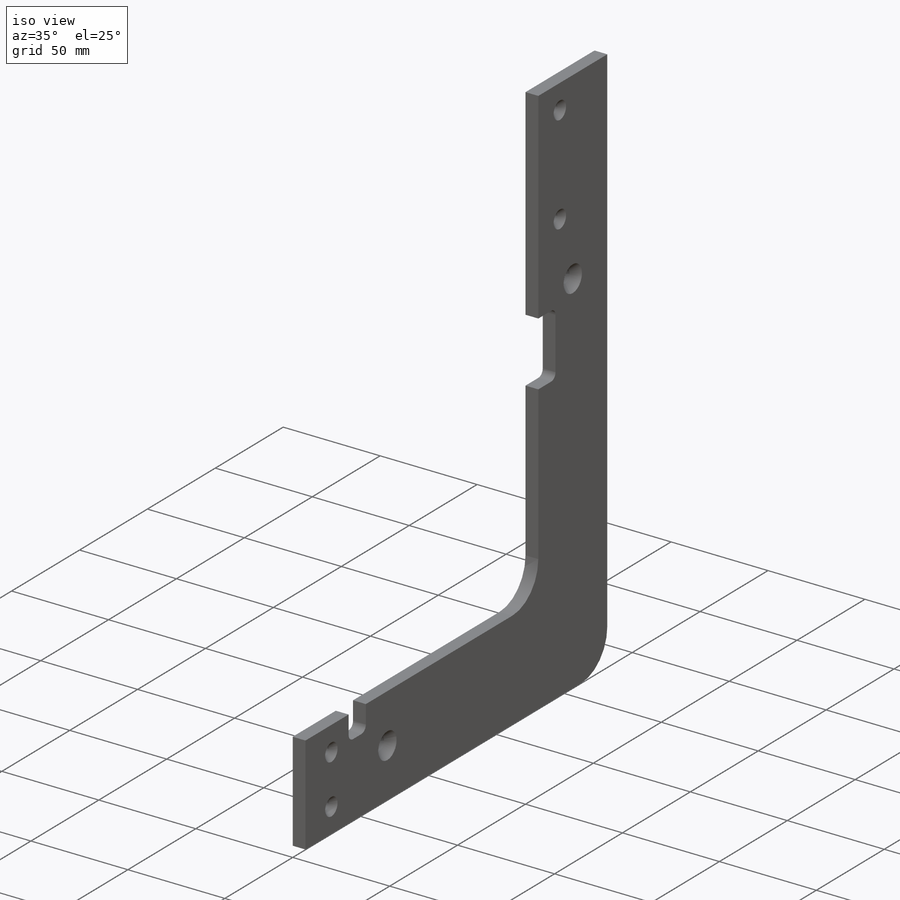
[diagram: iso view]
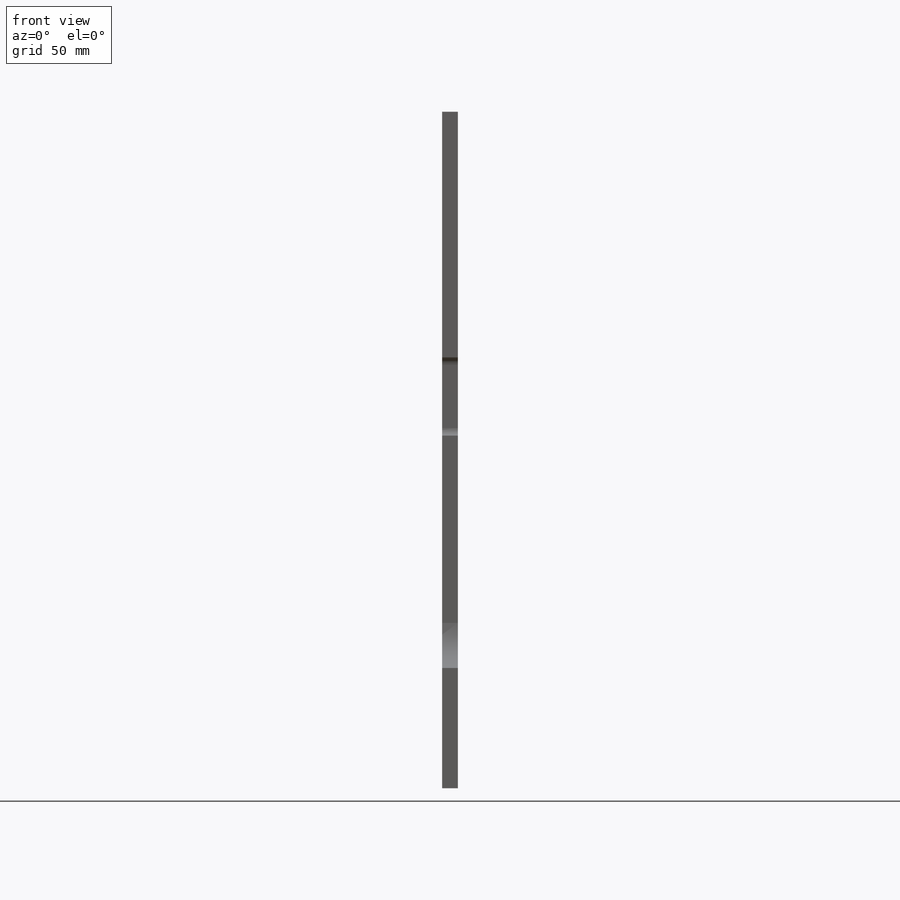
[diagram: front view]
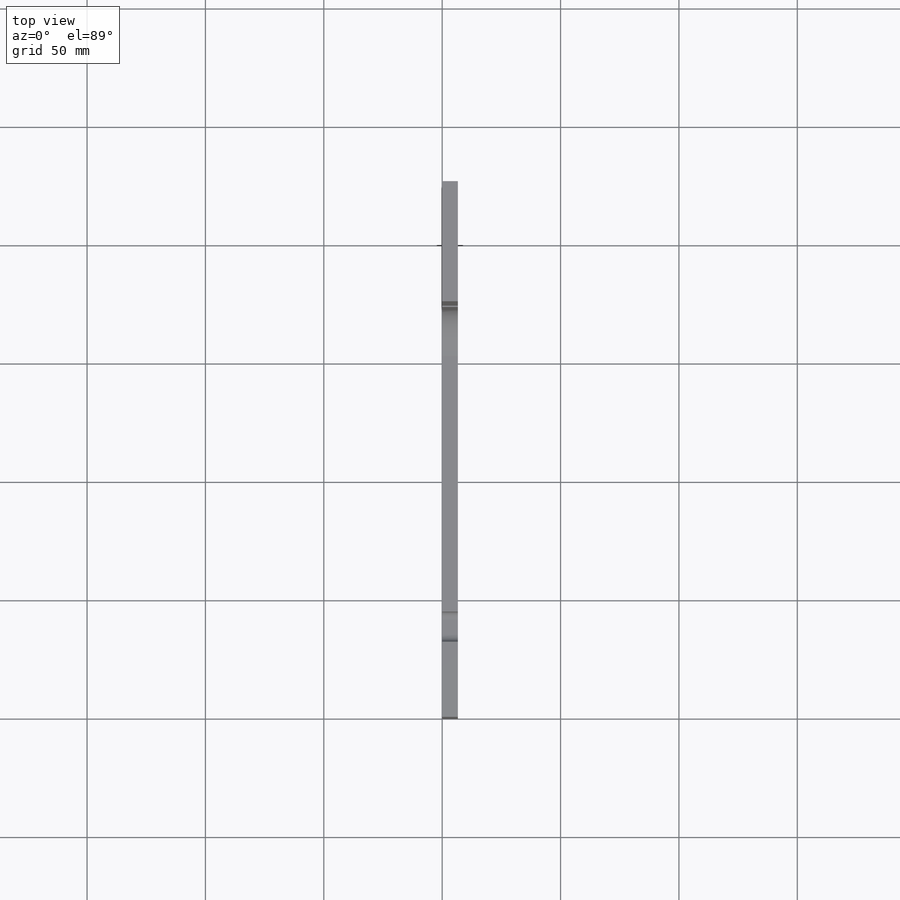
[diagram: top view]
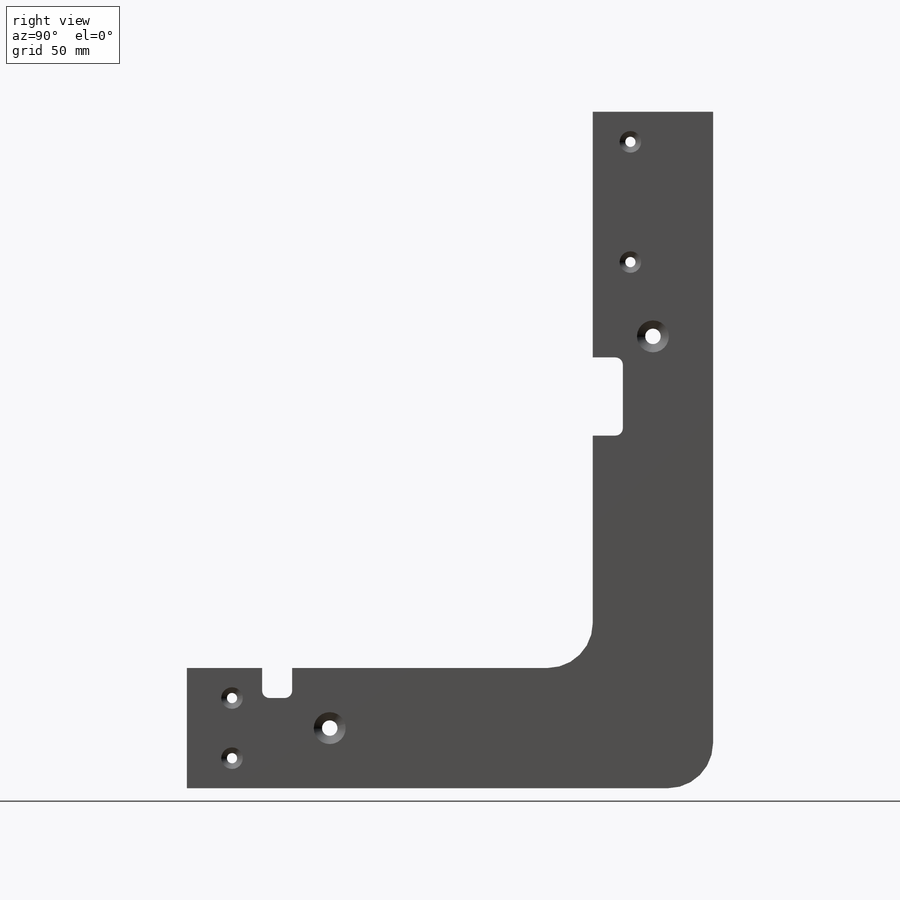
[diagram: right view]
SOLIDWORKS PART (.sldprt)
format: sldprt  version: not decoded by parser v0  size: 623,616 bytes
history: native  units: mm
features: sketch x8, hole x3, material x1, extrude x1, cut_extrude x1 (+12 scaffold rows collapsed)
feature tree (26):
  scaffold x12  (default folders/planes/origin — collapsed)
  material  "Acrylic (BLUE)"
  sketch  "Sketch1"  dims[c1.D8=19.05mm c1.D1=50.8mm c1.D2=330.2mm c1.D3=260.35mm c1.D4=92.075mm c1.D5=50.8mm c1.D6=311.15mm c1.D7=431.8mm c2.D1=50.8mm c2.D2=330.2mm c2.D3=228.6mm c2.D4=6.35mm c2.D5=6.35mm c2.D6=6.35mm c2.D7=50.8mm c2.D9=254.0mm c2.D10=25.4mm c2.D11=285.75mm]
  extrude  "Boss-Extrude2"  Depth=6.604mm
  hole  "CSK for #8 Flat Head Socket Cap Screw1"  Diameter=4.3053mm Depth=6.604mm
  sketch  "Sketch4"  dims[c1.D1=50.8mm c1.D2=12.7mm c1.D3=15.875mm c1.D4=31.75mm c1.D5=50.8mm c2.D1=15.875mm c2.D2=76.2mm c2.D3=12.7mm]
  sketch  "Sketch5"  dims[hole-wizard template sketch: 59 standard entries collapsed; hole parameters above]
  hole  "CSK for #8 Flat Head Socket Cap Screw2"  Diameter=4.3053mm Depth=6.604mm
  sketch  "Sketch8"  dims[D1=12.7mm D2=19.05mm]
  sketch  "Sketch7"  dims[hole-wizard template sketch: 59 standard entries collapsed; hole parameters above]
  hole  "CSK for 1/4 Flat Head Socket Cap Screw1"  Diameter=6.5278mm Depth=6.604mm
  sketch  "Sketch10"  dims[D1=94.869mm D2=60.325mm]
  sketch  "Sketch9"  dims[hole-wizard template sketch: 55 standard entries collapsed; hole parameters kept: c17.Thru Hole Depth=6.604mm c17.Near C'Sink Dia.=13.4874mm c17.D4=~3.666174mm c17.Near C'Sink Angle=82.0deg]
  sketch  "Sketch11"  dims[D4=3.175mm D8=3.175mm D1=12.7mm D2=33.02mm D3=120.269mm D5=12.7mm D6=12.7mm D7=38.1mm]
  cut_extrude  "Cut-Extrude1"  Depth=0.0508mm
decode coverage: 13 of 13 modeling features carry decoded parameters
note: ~ marks probable driven/reference dimensions
note: suppression state not decoded; provenance and decode notes live in map.json
